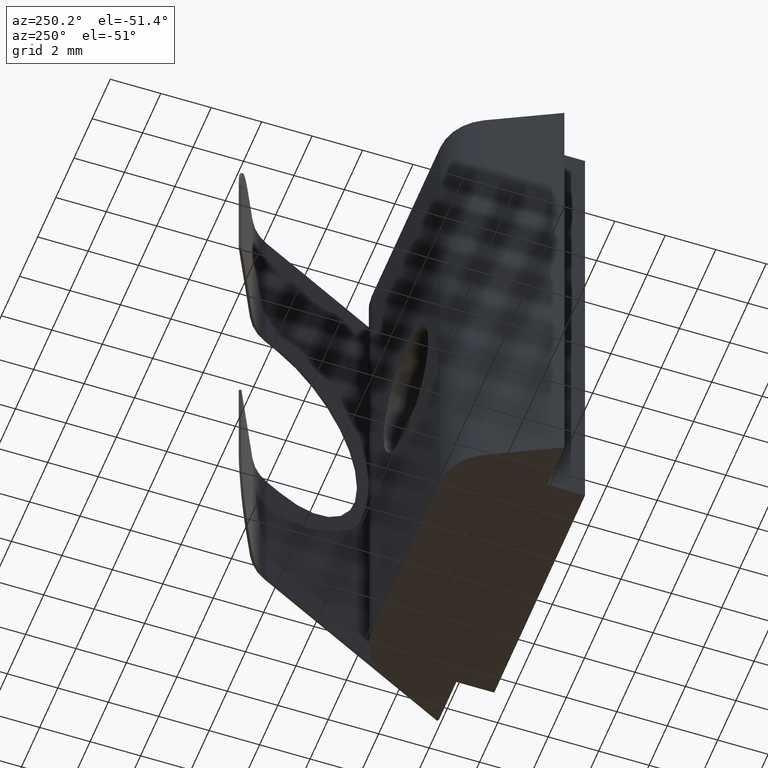
[diagram: clean part render]
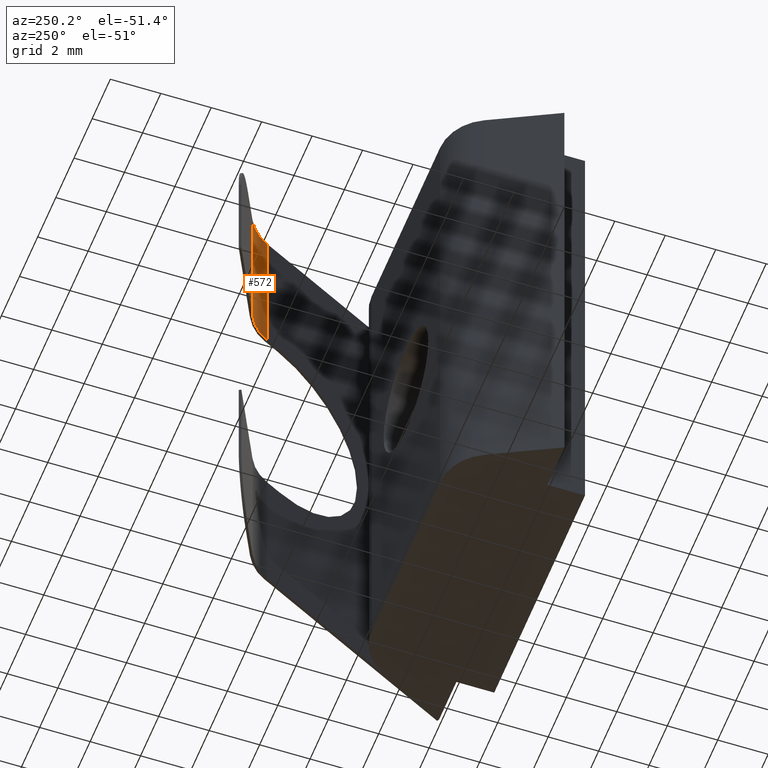
[diagram: same view with one face highlighted and labeled with its STEP entity id]
A machine part, auxiliary view. The second image highlights one B-rep face of the part: STEP entity #572.
In plain terms, the highlighted cylindrical surface (partial cylindrical patch) has radius 2 mm, axis along (0, 0, 1).
Its self-contained STEP definition (entity closure, byte-faithful):
#45=FACE_OUTER_BOUND('',#75,.T.);
#75=EDGE_LOOP('',(#428,#429,#430,#431));
#117=LINE('',#893,#181);
#121=LINE('',#907,#185);
#181=VECTOR('',#710,10.);
#185=VECTOR('',#726,10.);
#230=CIRCLE('',#622,2.);
#238=CIRCLE('',#635,2.);
#253=VERTEX_POINT('',#844);
#254=VERTEX_POINT('',#846);
#269=VERTEX_POINT('',#891);
#273=VERTEX_POINT('',#905);
#310=EDGE_CURVE('',#254,#253,#230,.T.);
#329=EDGE_CURVE('',#253,#269,#117,.T.);
#335=EDGE_CURVE('',#269,#273,#238,.T.);
#336=EDGE_CURVE('',#273,#254,#121,.T.);
#428=ORIENTED_EDGE('',*,*,#310,.T.);
#429=ORIENTED_EDGE('',*,*,#329,.T.);
#430=ORIENTED_EDGE('',*,*,#335,.T.);
#431=ORIENTED_EDGE('',*,*,#336,.T.);
#559=CYLINDRICAL_SURFACE('',#634,2.);
#572=ADVANCED_FACE('',(#45),#559,.F.);
#622=AXIS2_PLACEMENT_3D('',#847,#681,#682);
#634=AXIS2_PLACEMENT_3D('',#904,#722,#723);
#635=AXIS2_PLACEMENT_3D('',#906,#724,#725);
#681=DIRECTION('center_axis',(0.,5.35863314309216E-16,-1.));
#682=DIRECTION('ref_axis',(0.709848187401337,0.704354705275003,0.));
#710=DIRECTION('',(0.,0.,1.));
#722=DIRECTION('center_axis',(0.,0.,1.));
#723=DIRECTION('ref_axis',(0.709848187401337,0.704354705275003,0.));
#724=DIRECTION('center_axis',(0.,0.,1.));
#725=DIRECTION('ref_axis',(0.709848187401337,0.704354705275003,0.));
#726=DIRECTION('',(0.,0.,-1.));
#844=CARTESIAN_POINT('',(2.73686532604853,8.32626934790295,14.25));
#846=CARTESIAN_POINT('',(1.85630857050767,9.21369384034052,14.25));
#847=CARTESIAN_POINT('Origin',(0.948010944048698,7.43184215690303,14.25));
#891=CARTESIAN_POINT('',(2.73686532604853,8.32626934790295,20.));
#893=CARTESIAN_POINT('',(2.73686532604853,8.32626934790295,0.));
#904=CARTESIAN_POINT('Origin',(0.948010944048698,7.43184215690303,0.));
#905=CARTESIAN_POINT('',(1.85630857050767,9.21369384034052,20.));
#906=CARTESIAN_POINT('Origin',(0.948010944048698,7.43184215690303,20.));
#907=CARTESIAN_POINT('',(1.85630857050767,9.21369384034052,0.));